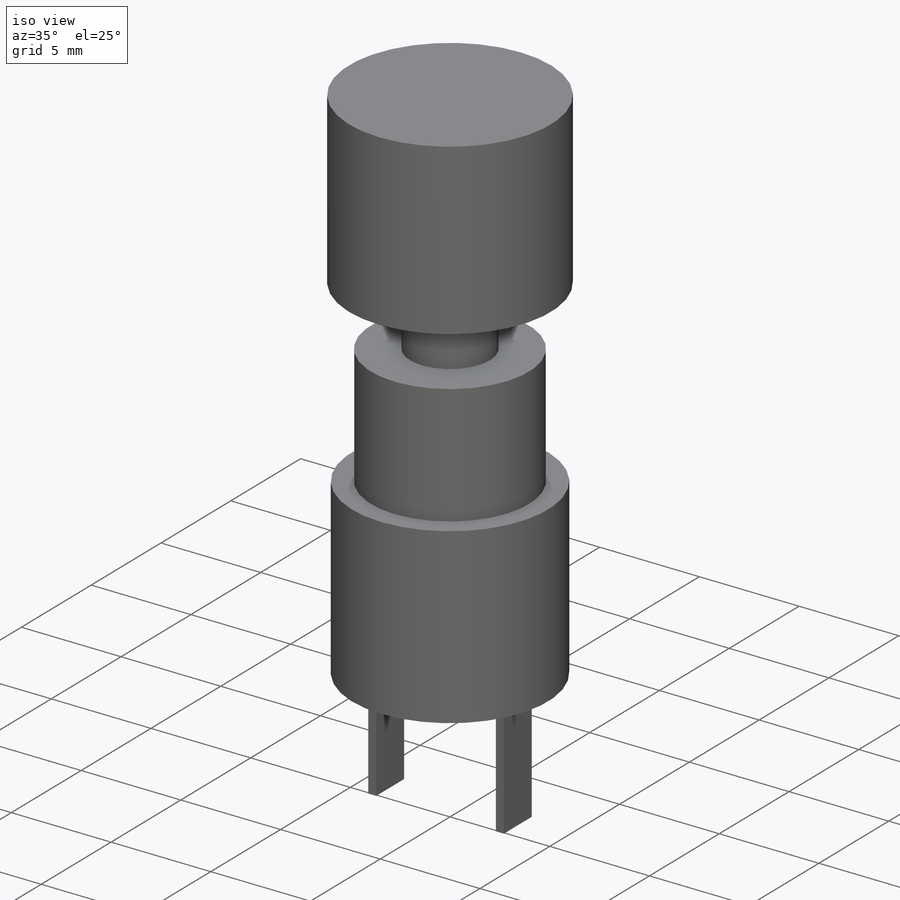
[diagram: iso view]
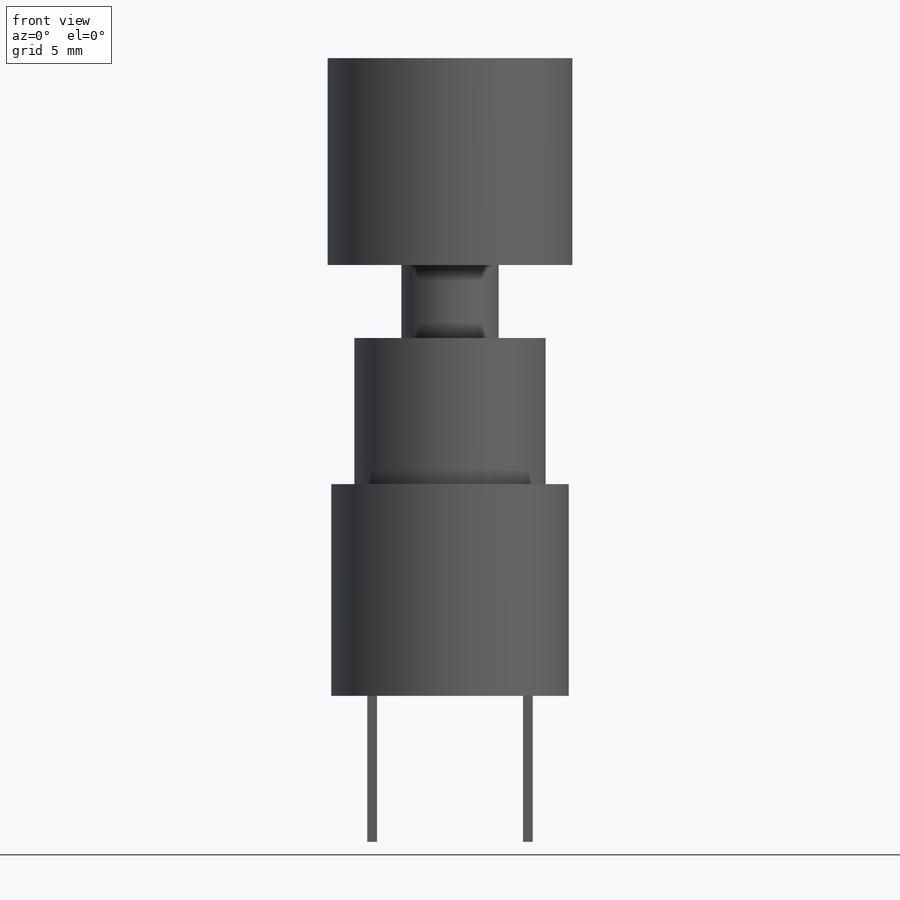
[diagram: front view]
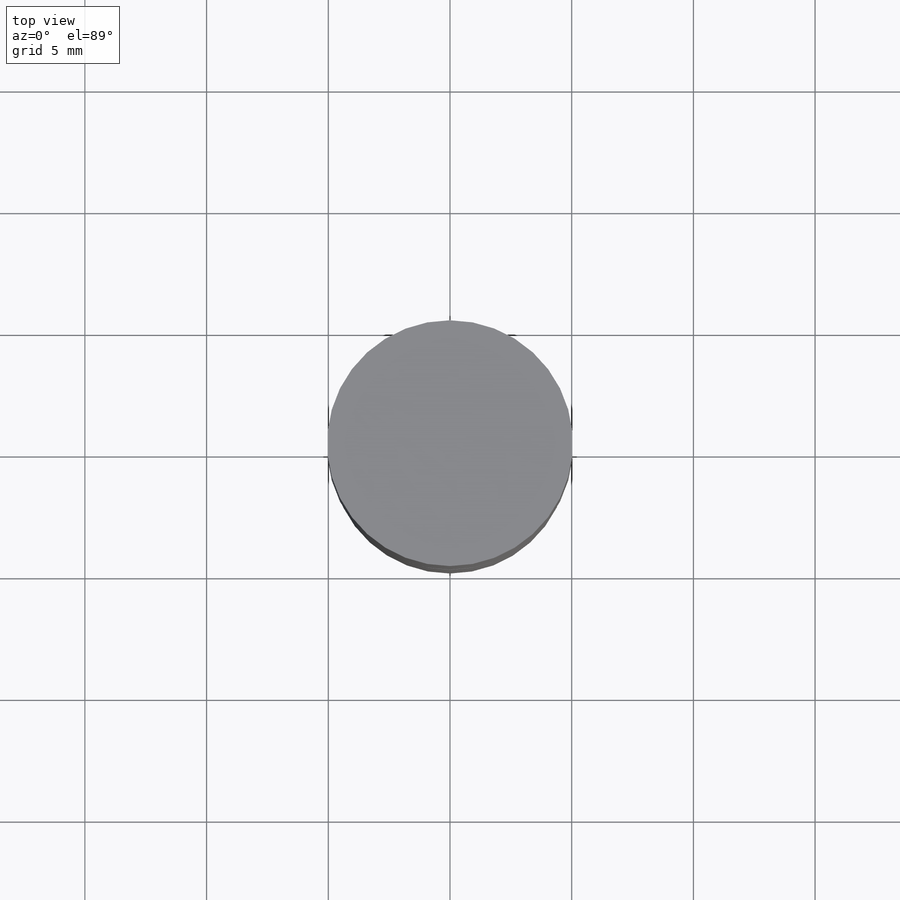
[diagram: top view]
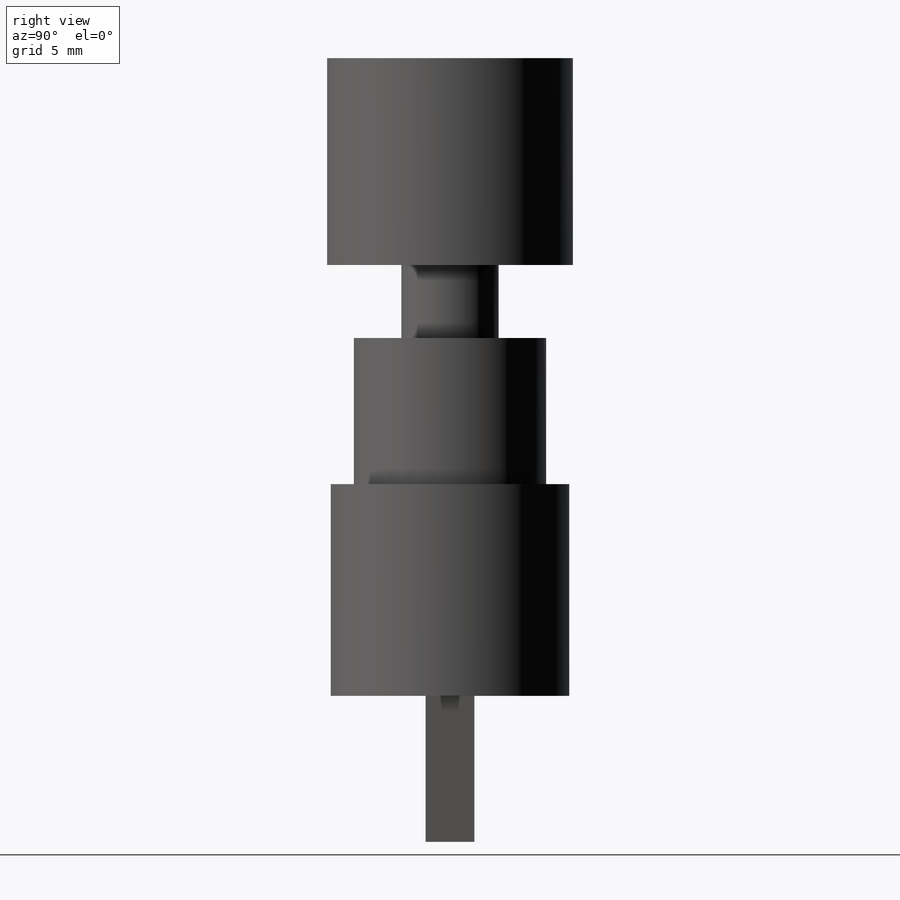
[diagram: right view]
SOLIDWORKS PART (.sldprt)
format: sldprt  version: not decoded by parser v0  size: 152,064 bytes
history: native  units: mm
features: sketch x5, extrude x5, plane x3, material x1 (+10 scaffold rows collapsed)
feature tree (24):
  scaffold x10  (default folders/planes/origin — collapsed)
  material  "Matériau <non spécifié>"
  plane  "Plan de face"
  plane  "Plan de dessus"
  plane  "Plan de droite"
  sketch  "Esquisse2"  dims[D1=9.8mm]
  extrude  "Boss.-Extru.1"  Depth=8.7mm
  sketch  "Esquisse3"  dims[D1=7.9mm]
  extrude  "Boss.-Extru.2"  Depth=6mm
  sketch  "Esquisse4"  dims[D1=4.0mm]
  extrude  "Boss.-Extru.3"  Depth=3mm
  sketch  "Esquisse5"  dims[D1=10.1mm]
  extrude  "Boss.-Extru.4"  Depth=8.5mm
  sketch  "Esquisse6"  dims[D1=0.4mm D2=2.0mm D3=2.0mm D4=0.4mm D5=1.0mm D6=1.0mm D7=3.0mm D8=3.0mm]
  extrude  "Boss.-Extru.5"  Depth=6mm
decode coverage: 10 of 10 modeling features carry decoded parameters
note: suppression state not decoded; provenance and decode notes live in map.json
